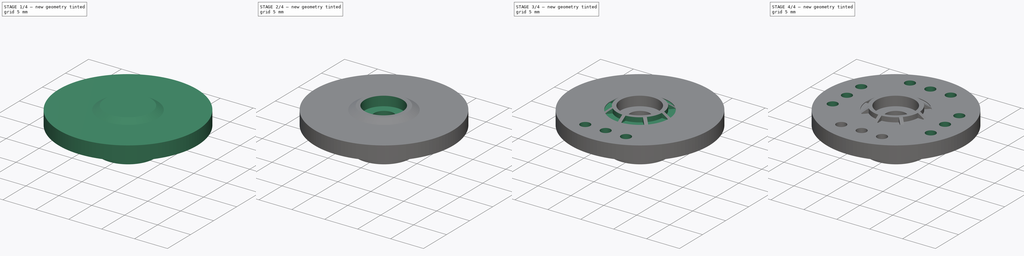
[diagram: build sequence overview — one tinted view per stage of 4, left to right]
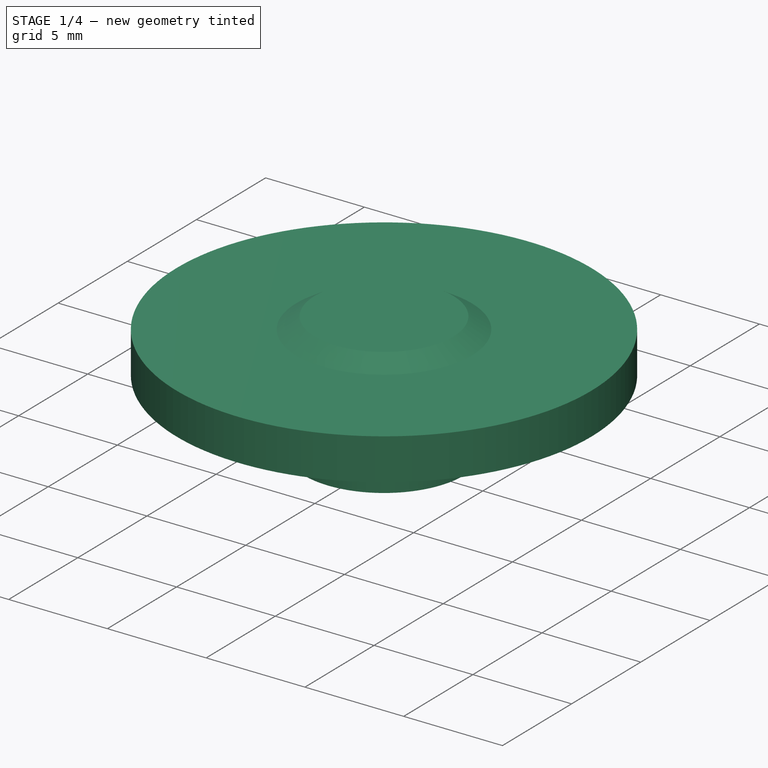
[diagram: stage 1 of 4 — iso view after this stage's code; geometry added in this stage tinted green]
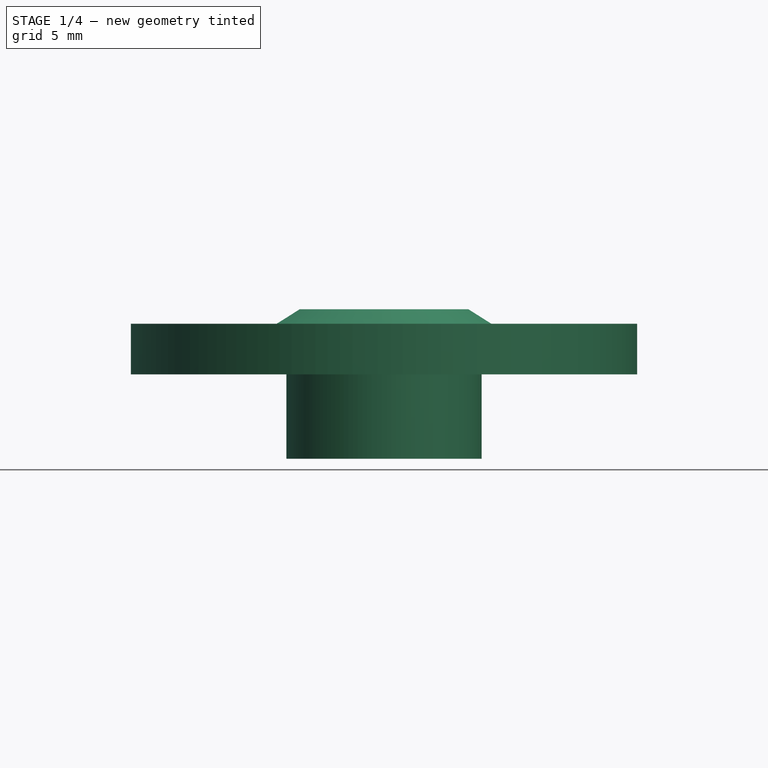
[diagram: stage 1 of 4 — front view after this stage's code; geometry added in this stage tinted green]
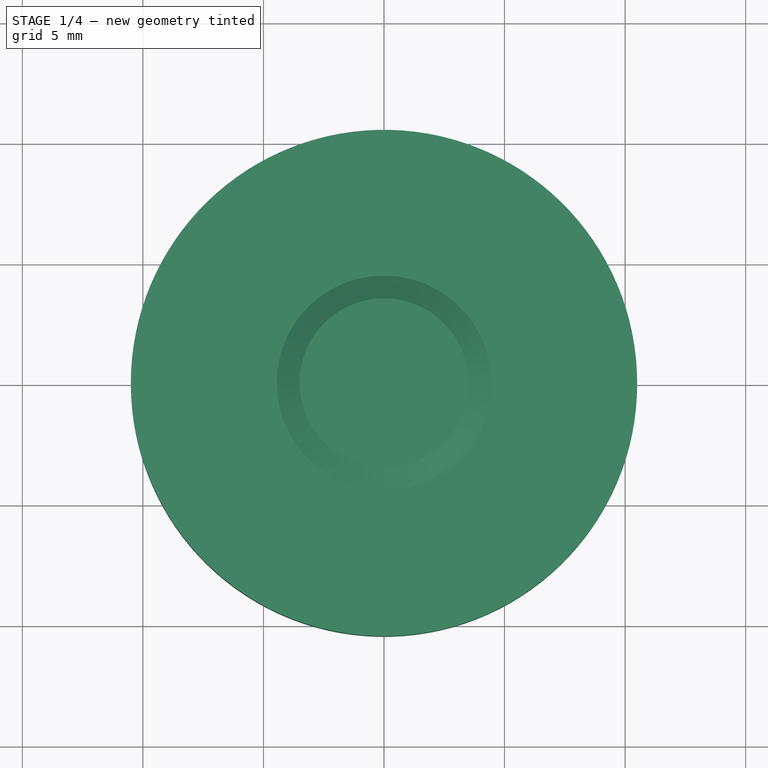
[diagram: stage 1 of 4 — top view after this stage's code; geometry added in this stage tinted green]
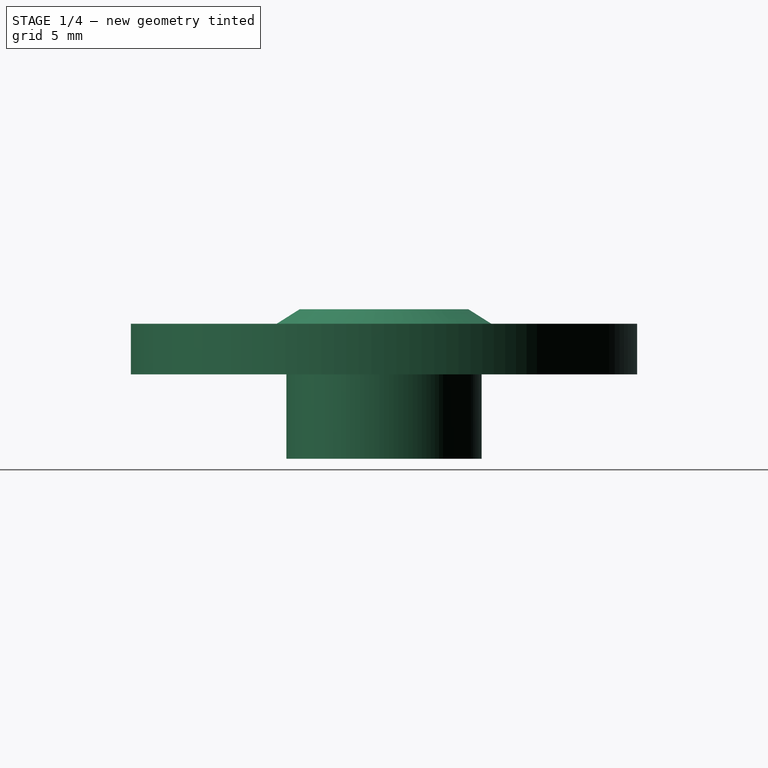
[diagram: stage 1 of 4 — right view after this stage's code; geometry added in this stage tinted green]
FCSTD DOCUMENT  (FreeCAD 0.14R3702 (Git))
Label: Futaba3003-rounded-horn
Comment: Designed from the real futaba 3003 rounded horn, using the caliper
License: CC-BY 3.0
LicenseURL: http://creativecommons.org/licenses/by/3.0/
objects: Sketcher::SketchObject×6, PartDesign::Pocket×5, PartDesign::PolarPattern×2, PartDesign::Revolution×1, PartDesign::Fillet×1
note: 21 computed .brp shape members not serialized (recipe doc carries the construction recipe); baked Part::Feature solids carry a one-line shape summary decoded from their .brp

FEATURE [Sketcher::SketchObject] Sketch001  label="horn-body-sketch"
  Placement = pos=(0,0,0) rot=(1,0,0;1.5708rad)
  sketch-geometry (8):
    g0: LineSegment StartX=0 StartY=0 StartZ=0 EndX=4.05 EndY=0 EndZ=0
    g1: LineSegment StartX=4.05 StartY=0 StartZ=0 EndX=4.05 EndY=3.5 EndZ=0
    g2: LineSegment StartX=4.05 StartY=3.5 StartZ=0 EndX=10.5 EndY=3.5 EndZ=0
    g3: LineSegment StartX=10.5 StartY=3.5 StartZ=0 EndX=10.5 EndY=5.6 EndZ=0
    g4: LineSegment StartX=10.5 StartY=5.6 StartZ=0 EndX=4.45 EndY=5.6 EndZ=0
    g5: LineSegment StartX=4.45 StartY=5.6 StartZ=0 EndX=3.5 EndY=6.2 EndZ=0
    g6: LineSegment StartX=3.5 StartY=6.2 StartZ=0 EndX=0 EndY=6.2 EndZ=0
    g7: LineSegment StartX=0 StartY=6.2 StartZ=0 EndX=0 EndY=0 EndZ=0
  constraints (23):
    c: Coincident(g0,g-1)
    c: Horizontal(g0)
    c: Coincident(g0,g1)
    c: Vertical(g1)
    c: Coincident(g1,g2)
    c: Horizontal(g2)
    c: Coincident(g2,g3)
    c: Vertical(g3)
    c: Coincident(g3,g4)
    c: Horizontal(g4)
    c: Coincident(g4,g5)
    c: Coincident(g5,g6)
    c: Horizontal(g6)
    c: Coincident(g6,g7)
    c: Coincident(g7,g-1)
    c: Vertical(g7)
    c: DistanceY(g7) = -6.2
    c: DistanceY(g1) = 3.5
    c: DistanceY(g3) = 2.1
    c: DistanceX(g0) = 4.05
    c: DistanceX(g6,g3) = 10.5
    c: DistanceX(g4,g6) = -4.45
    c: DistanceX(g6) = -3.5
FEATURE [PartDesign::Revolution] Revolution  label="horn-body"
  Angle = 360
  Axis = (0,0,1)
  Base = (0,0,0)
  Placement = pos=(0,0,0) rot=(1,0,0;1.5708rad)
  ReferenceAxis = -> Sketch001 [V_Axis]
  Reversed = true
  Sketch = -> Sketch001
FEATURE [Sketcher::SketchObject] Sketch002  label="bottom-drill-sketch"
  Placement = pos=(0,0,0) rot=(1,0,0;3.14159rad)
  Support = -> Revolution [Face1]
  sketch-geometry (1):
    g0: Circle CenterX=0 CenterY=0 CenterZ=0 NormalX=0 NormalY=0 NormalZ=1 Radius=2.7
  constraints (2):
    c: Coincident(g0,g-1)
    c: Radius(g0) = 2.7
FEATURE [PartDesign::Pocket] Pocket  label="bottom-drill"
  Length = 3.65
  Placement = pos=(0,0,0) rot=(1,0,0;1.5708rad)
  Sketch = -> Sketch002
  Type = 0
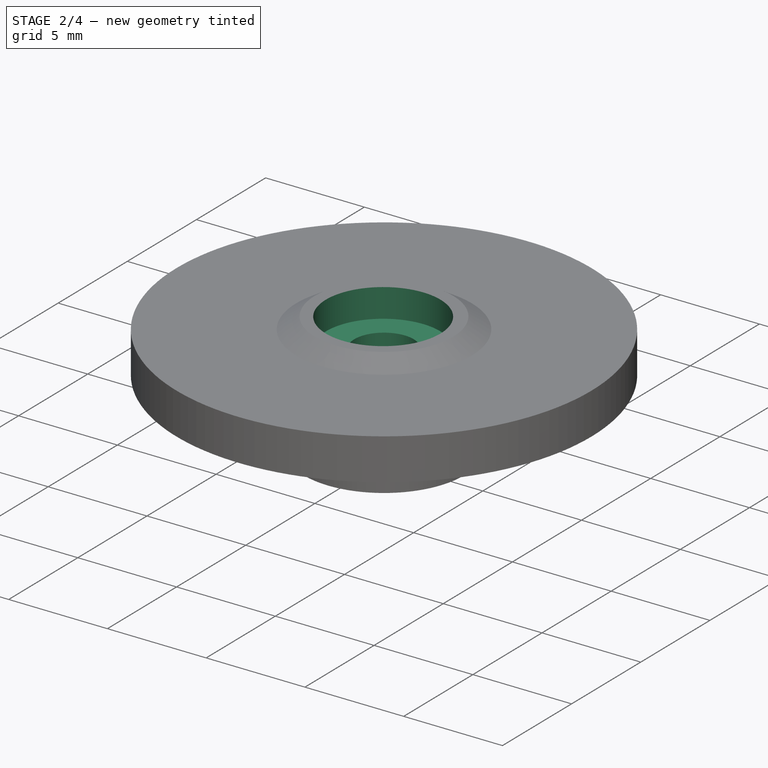
[diagram: stage 2 of 4 — iso view after this stage's code; geometry added in this stage tinted green]
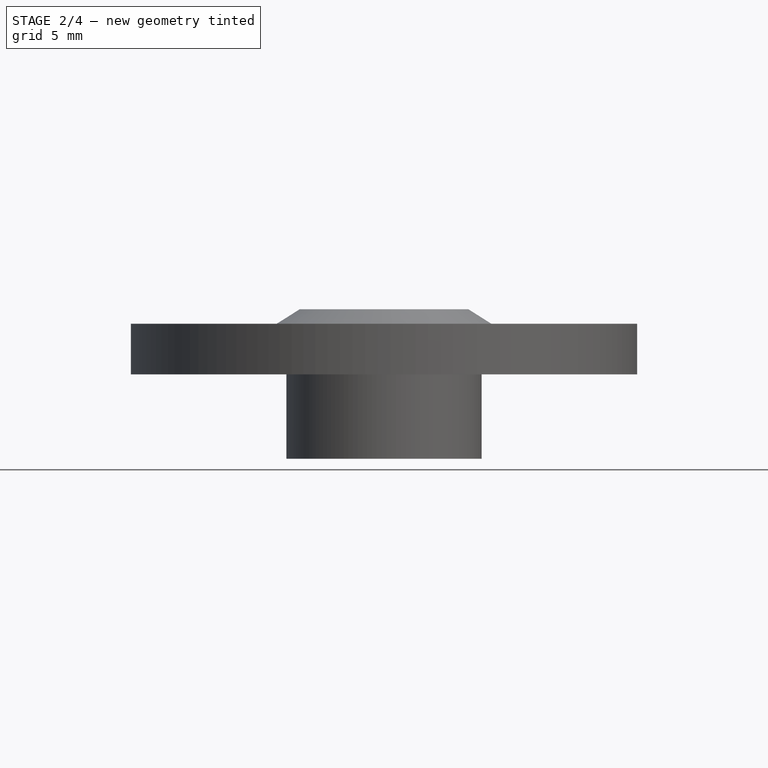
[diagram: stage 2 of 4 — front view after this stage's code; geometry added in this stage tinted green]
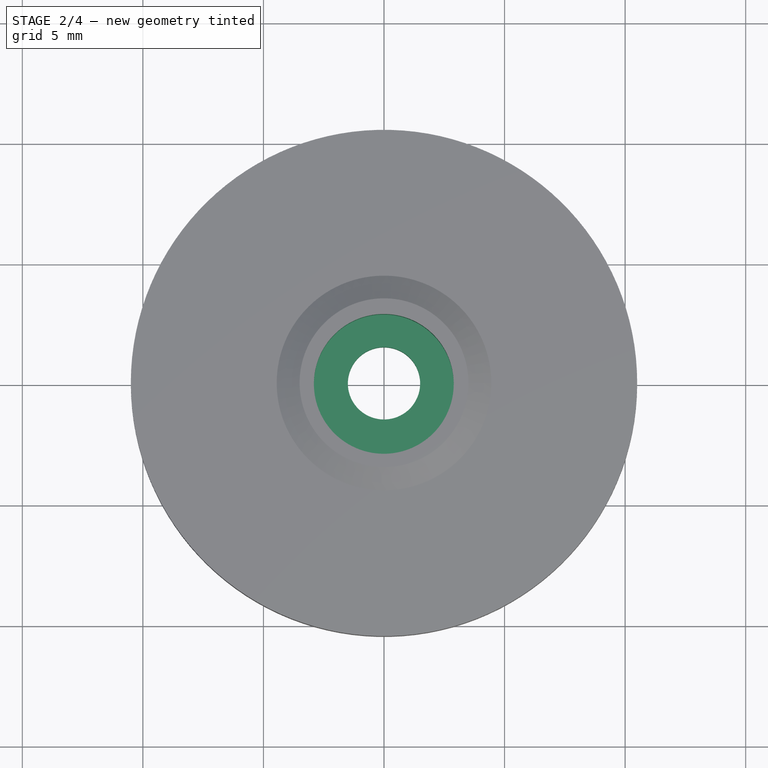
[diagram: stage 2 of 4 — top view after this stage's code; geometry added in this stage tinted green]
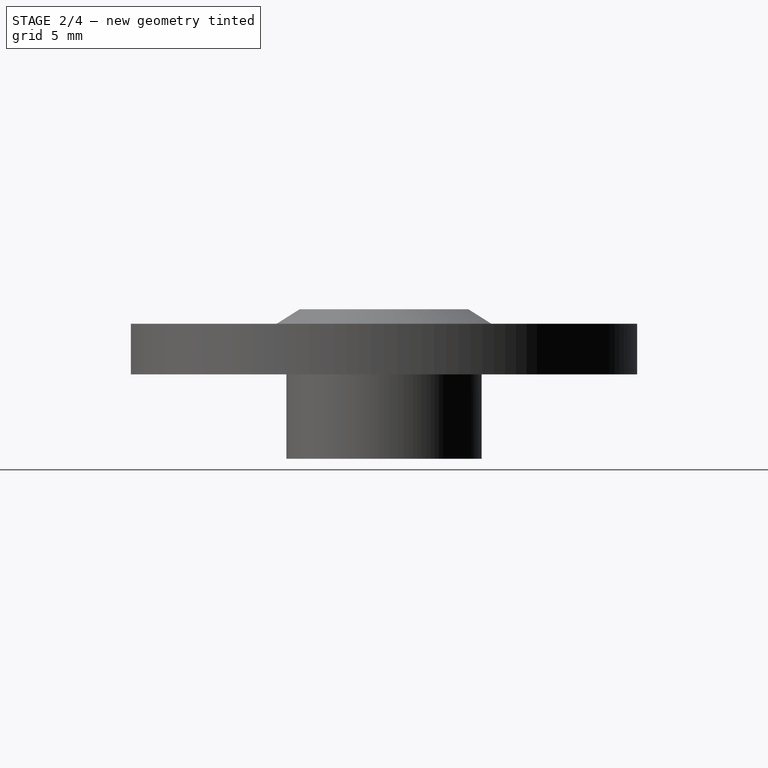
[diagram: stage 2 of 4 — right view after this stage's code; geometry added in this stage tinted green]
FEATURE [Sketcher::SketchObject] Sketch003
  Placement = pos=(0,0,6.2) rot=(0,0,1;3.14159rad)
  Support = -> Pocket [Face9]
  sketch-geometry (1):
    g0: Circle CenterX=0.008285 CenterY=0.048049 CenterZ=0 NormalX=0 NormalY=0 NormalZ=1 Radius=2.9
  constraints (1):
    c: Radius(g0) = 2.9
FEATURE [PartDesign::Pocket] Pocket001  label="top-drill"
  Length = 1.45
  Placement = pos=(0,0,0) rot=(1,0,0;1.5708rad)
  Sketch = -> Sketch003
  Type = 0
FEATURE [Sketcher::SketchObject] Sketch004  label="horn-drill-sketch"
  Placement = pos=(0,0,4.75) rot=(0,0,1;3.14159rad)
  Support = -> Pocket001 [Face11]
  sketch-geometry (1):
    g0: Circle CenterX=0 CenterY=0 CenterZ=0 NormalX=0 NormalY=0 NormalZ=1 Radius=1.5
  constraints (2):
    c: Coincident(g0,g-1)
    c: Radius(g0) = 1.5
FEATURE [PartDesign::Pocket] Pocket002  label="horn-drill"
  Length = 5
  Placement = pos=(0,0,0) rot=(1,0,0;1.5708rad)
  Sketch = -> Sketch004
  Type = 1
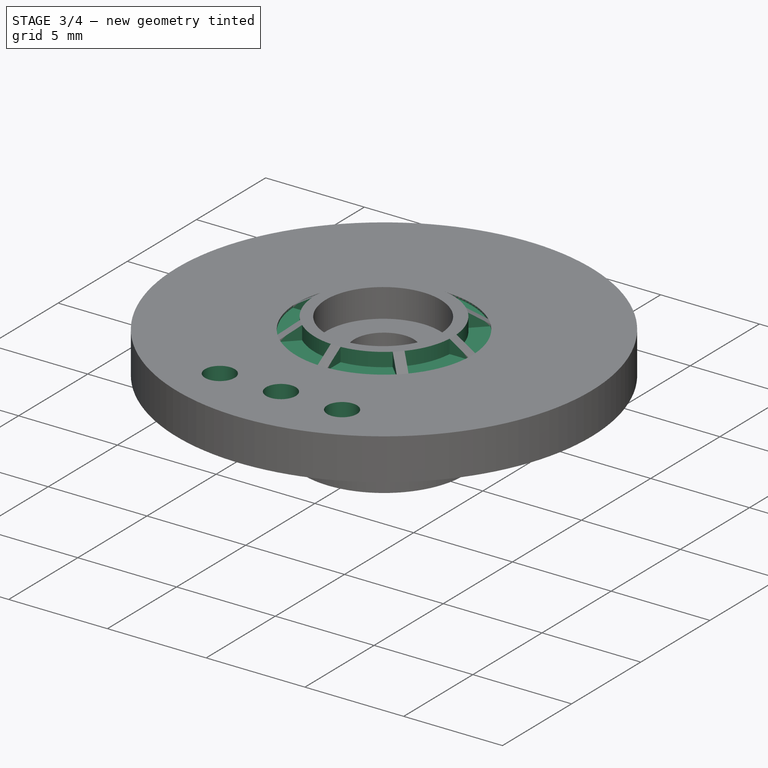
[diagram: stage 3 of 4 — iso view after this stage's code; geometry added in this stage tinted green]
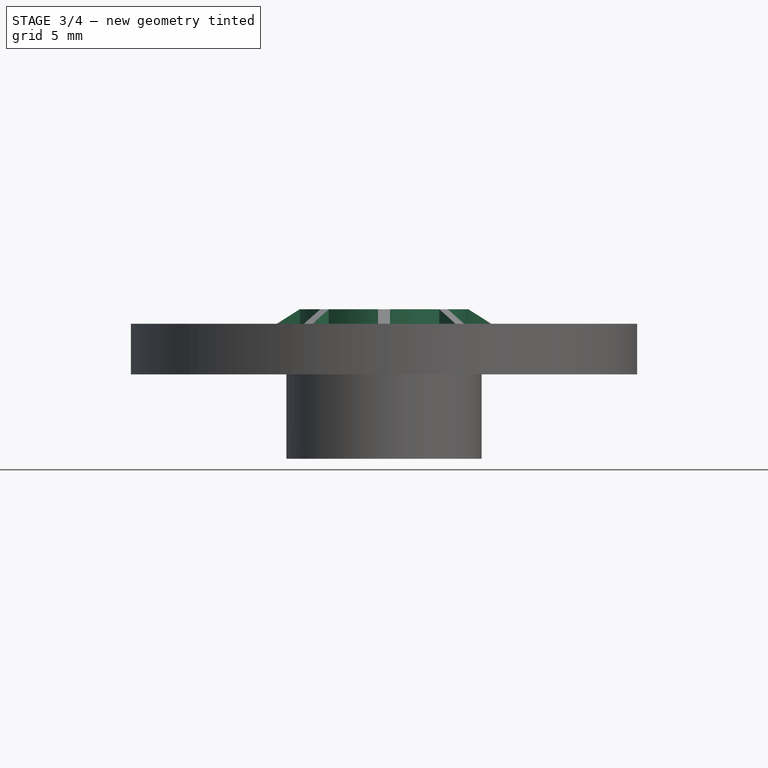
[diagram: stage 3 of 4 — front view after this stage's code; geometry added in this stage tinted green]
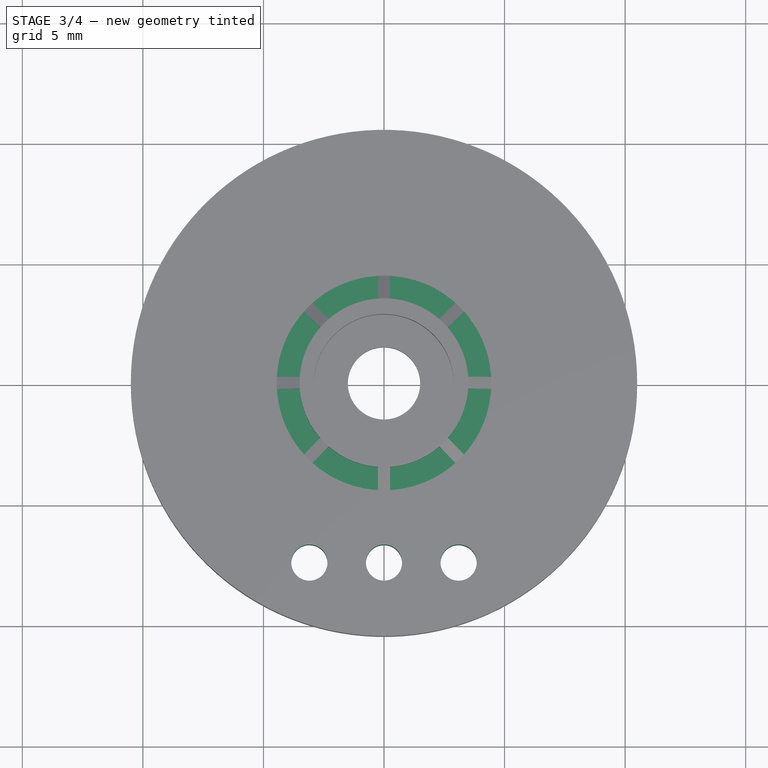
[diagram: stage 3 of 4 — top view after this stage's code; geometry added in this stage tinted green]
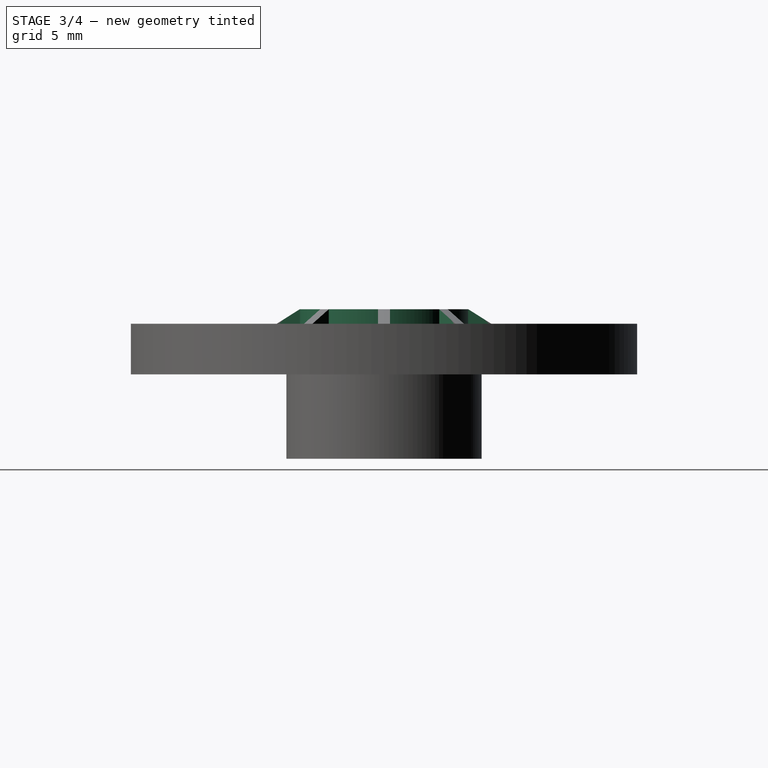
[diagram: stage 3 of 4 — right view after this stage's code; geometry added in this stage tinted green]
FEATURE [Sketcher::SketchObject] Sketch  label="top-reinforcement-sketch"
  ExternalGeometry = -> [Pocket002]
  Placement = pos=(0,0,6.2) rot=(0,0,1;3.14159rad)
  Support = -> Pocket002 [Face12]
  sketch-geometry (4):
    g0: LineSegment StartX=-0.25 StartY=-4.44106 StartZ=0 EndX=-0.25 EndY=-3.49106 EndZ=0
    g1: LineSegment StartX=-2.96353 StartY=-3.31708 StartZ=0 EndX=-2.29178 EndY=-2.64533 EndZ=0
    g2: ArcOfCircle CenterX=0 CenterY=0 CenterZ=0 NormalX=0 NormalY=0 NormalZ=1 Radius=3.5 StartAngle=3.99848 EndAngle=4.6409
    g3: ArcOfCircle CenterX=0 CenterY=0 CenterZ=0 NormalX=0 NormalY=0 NormalZ=1 Radius=4.44809 StartAngle=3.98322 EndAngle=4.65616
  constraints (12):
    c: Vertical(g0)
    c: Coincident(g2,g-1)
    c: Coincident(g3,g-1)
    c: Coincident(g2,g0)
    c: Coincident(g2,g1)
    c: Coincident(g3,g0)
    c: Coincident(g3,g1)
    c: Equal(g0,g1)
    c: Angle(g1,g-1) = 2.35619
    c: DistanceX(g-1,g0) = -0.25
    c: DistanceY(g0) = 0.95
    c: PointOnObject(g0,g-3)
FEATURE [PartDesign::Pocket] Pocket003  label="top-reinforcement-master"
  Length = 0.7
  Placement = pos=(0,0,0) rot=(1,0,0;1.5708rad)
  Sketch = -> Sketch
  Type = 0
FEATURE [PartDesign::PolarPattern] PolarPattern  label="top-reinforcements"
  Angle = 360
  Axis = -> Sketch [N_Axis]
  Occurrences = 8
  Originals = -> [Pocket003]
  Placement = pos=(0,0,0) rot=(1,0,0;1.5708rad)
FEATURE [Sketcher::SketchObject] Sketch005  label="top-drill-sketch"
  ExternalGeometry = -> [PolarPattern]
  Placement = pos=(0,0,5.6) rot=(0,0,1;3.14159rad)
  Support = -> PolarPattern [Face8]
  sketch-geometry (6):
    g0: Circle CenterX=0 CenterY=7.45 CenterZ=0 NormalX=0 NormalY=0 NormalZ=1 Radius=0.75
    g1: Circle CenterX=-3.095 CenterY=7.45 CenterZ=0 NormalX=0 NormalY=0 NormalZ=1 Radius=0.75
    g2: Circle CenterX=3.095 CenterY=7.45 CenterZ=0 NormalX=0 NormalY=0 NormalZ=1 Radius=0.75
    g3: LineSegment [constr] StartX=-3.095 StartY=7.45 StartZ=0 EndX=0 EndY=7.45 EndZ=0
    g4: LineSegment [constr] StartX=0 StartY=10.5 StartZ=0 EndX=0 EndY=8.2 EndZ=0
    g5: GeomPoint [constr] X=-2.345 Y=7.45 Z=0
  constraints (16):
    c: PointOnObject(g0,g-2)
    c: Radius(g0) = 0.75
    c: Equal(g2,g0)
    c: Equal(g0,g1)
    c: Symmetric(g1,g2,g-2)
    c: Horizontal(g3)
    c: Coincident(g3,g1)
    c: Coincident(g3,g0)
    c: Vertical(g4)
    c: PointOnObject(g4,g-3)
    c: PointOnObject(g4,g0)
    c: PointOnObject(g4,g-2)
    c: DistanceY(g4) = -2.3
    c: PointOnObject(g5,g3)
    c: PointOnObject(g5,g1)
    c: DistanceX(g5,g2) = 5.44
FEATURE [PartDesign::Pocket] Pocket004  label="top-drills-master"
  Length = 5
  Placement = pos=(0,0,0) rot=(1,0,0;1.5708rad)
  Sketch = -> Sketch005
  Type = 1
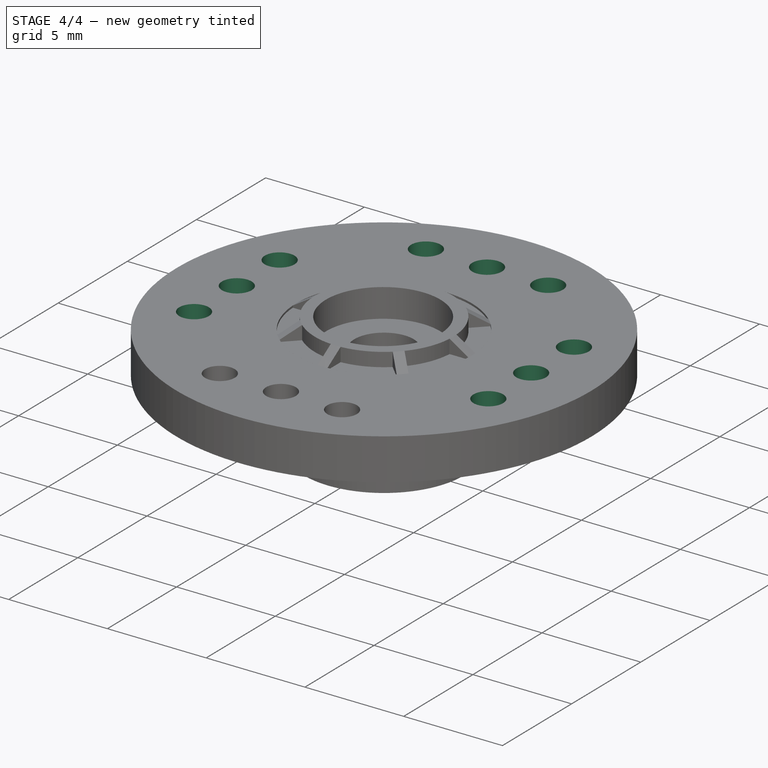
[diagram: stage 4 of 4 — iso view after this stage's code; geometry added in this stage tinted green]
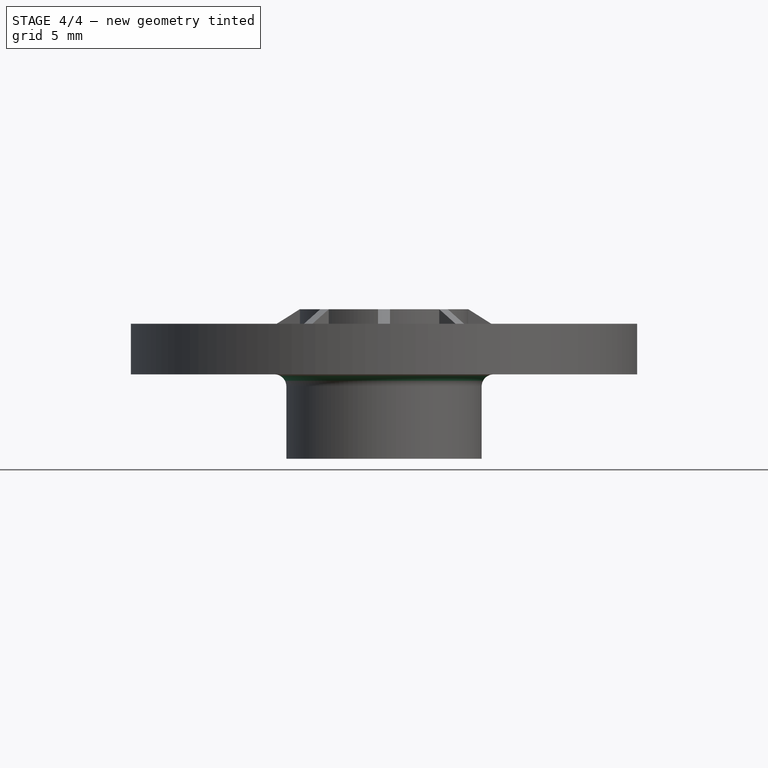
[diagram: stage 4 of 4 — front view after this stage's code; geometry added in this stage tinted green]
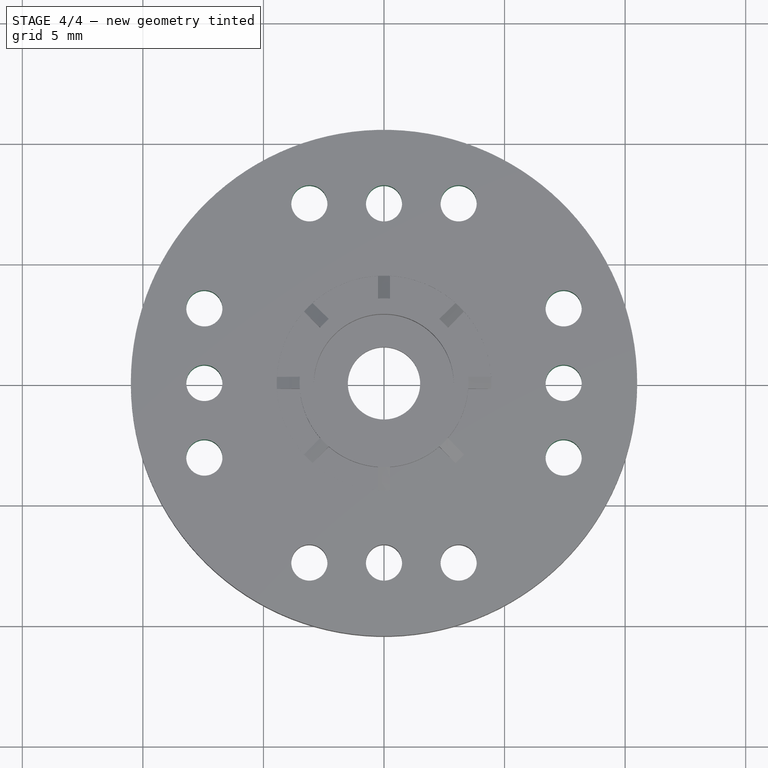
[diagram: stage 4 of 4 — top view after this stage's code; geometry added in this stage tinted green]
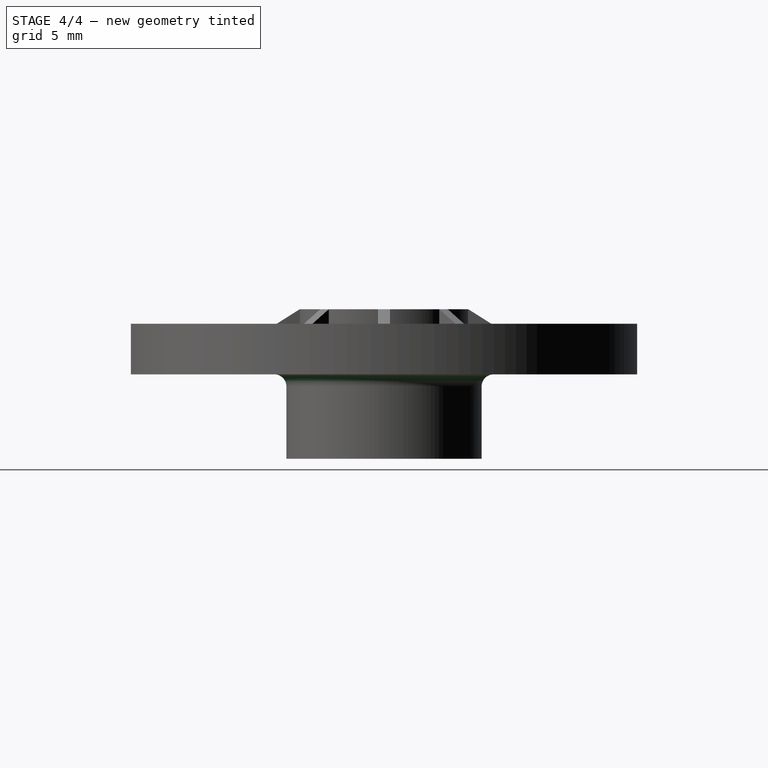
[diagram: stage 4 of 4 — right view after this stage's code; geometry added in this stage tinted green]
FEATURE [PartDesign::PolarPattern] PolarPattern001
  Angle = 360
  Axis = -> Sketch005 [N_Axis]
  Occurrences = 4
  Originals = -> [Pocket004]
  Placement = pos=(0,0,0) rot=(1,0,0;1.5708rad)
FEATURE [PartDesign::Fillet] Fillet  label="final-model"
  Base = -> PolarPattern001 [Edge3]
  Placement = pos=(0,0,0) rot=(1,0,0;1.5708rad)
  Radius = 0.5
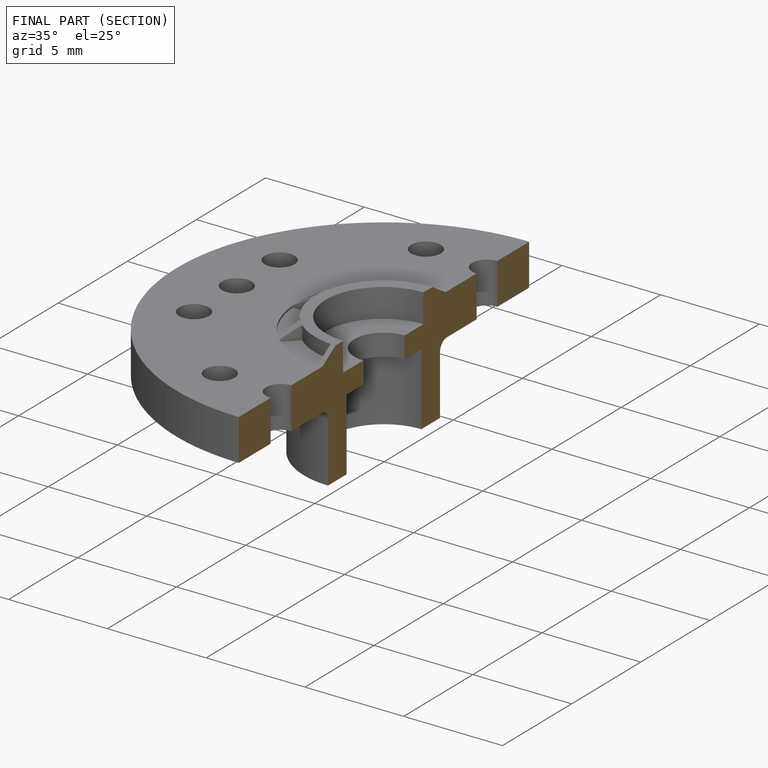
[diagram: finished part — half-section view (interior)]
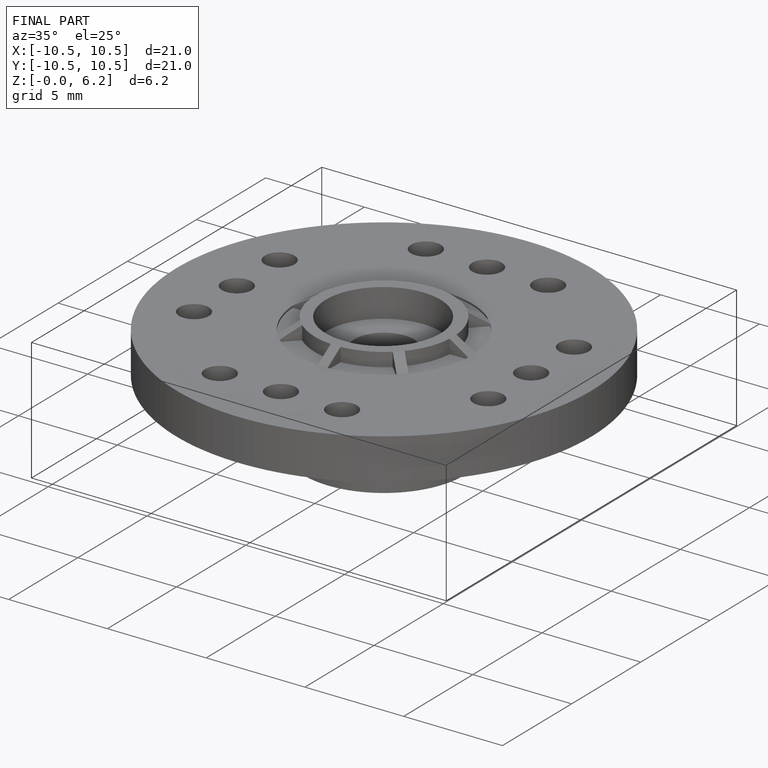
[diagram: finished part — iso view with bounding-box wireframe]
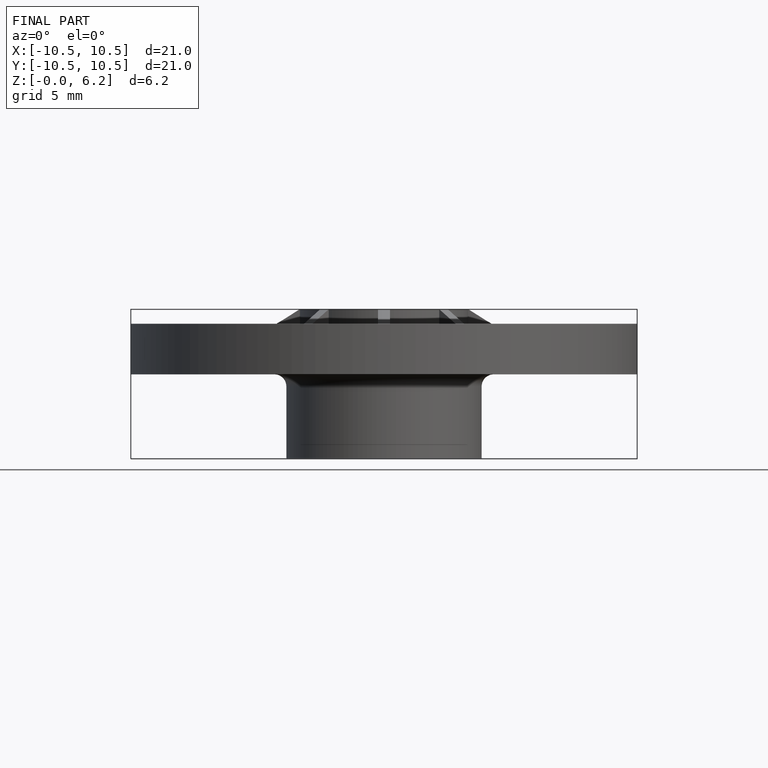
[diagram: finished part — front view with bounding-box wireframe]
